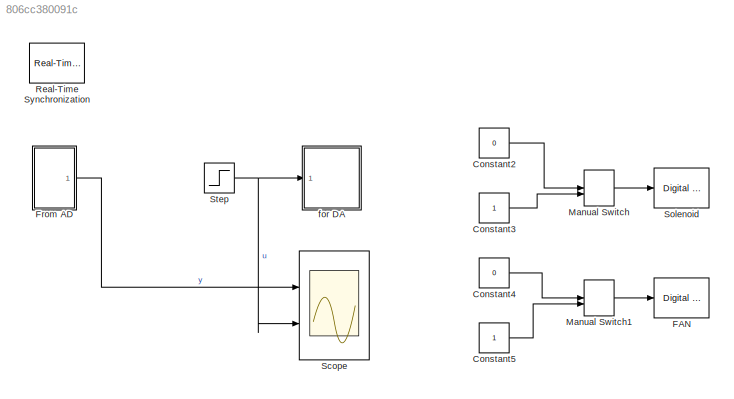
MODEL slx_806cc380091c
KIND model
CONFIG AbsTol = auto
CONFIG EnableMultiTasking = off
CONFIG FixedStep = 0.1
CONFIG MaxStep = auto
CONFIG MinStep = auto
CONFIG RelTol = 1e-3
CONFIG SampleTimeConstraint = Unconstrained
CONFIG Solver = FixedStepAuto
CONFIG SolverName = FixedStepAuto
CONFIG StartTime = 0.0
CONFIG StopTime = Endtime
BLOCK [Constant] Constant2
  Value = 0
BLOCK [Constant] Constant3
BLOCK [Constant] Constant4
  Value = 0
BLOCK [Constant] Constant5
BLOCK [Reference] FAN  REF=sldrtlib/Digital Output
  AttributesFormatString = Humusoft\nMF644 [auto]
  Ports = [1]
  SourceBlock = sldrtlib/Digital Output
  SourceProductBaseCode = WT
  SourceProductName = Simulink Desktop Real-Time
  SourceType = Simulink Desktop Real-Time Digital Output
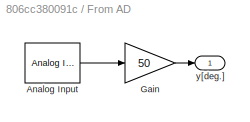
BLOCK [SubSystem] From AD
  Ports = [0, 1]
  RequestExecContextInheritance = off
  Variant = off
BLOCK [Reference] From AD/Analog Input  REF=sldrtlib/Analog Input
  AttributesFormatString = Humusoft\nMF644 [auto]
  Ports = [0, 1]
  SourceBlock = sldrtlib/Analog Input
  SourceProductBaseCode = WT
  SourceProductName = Simulink Desktop Real-Time
  SourceType = Simulink Desktop Real-Time Analog Input
BLOCK [Gain] From AD/Gain
  Gain = 50
  OutDataTypeStr = Inherit: Inherit via internal rule
  ParamDataTypeStr = Inherit: Inherit via internal rule
  SaturateOnIntegerOverflow = off
BLOCK [Outport] From AD/y[deg.]
  IconDisplay = Port number
BLOCK [ManualSwitch] Manual Switch
BLOCK [ManualSwitch] Manual Switch1
BLOCK [Reference] Real-Time Synchronization  REF=sldrtlib/Real-Time
Synchronization
  Ports = []
  SourceBlock = sldrtlib/Real-Time\nSynchronization
  SourceProductBaseCode = WT
  SourceProductName = Simulink Desktop Real-Time
  SourceType = Simulink Desktop Real-Time Synchronization
BLOCK [Scope] Scope
  NumInputPorts = 2
  Ports = [2]
  ScopeSpecificationString = Simulink.scopes.TimeScopeBlockCfg('CurrentConfiguration', extmgr.ConfigurationSet(extmgr.Configuration('Core','General UI',true,'FigureColor',[1 1 1]),extmgr.Configuration('Core','Source UI',true),extmgr.Configuration('Sources','WiredSimulink',true,'DataLoggingVariableName','ScopeData1'),extmgr.Configuration('Visuals','Time Domain',true,'SerializedDisplays',{struct('MinYLimReal','10.10132','MaxYLi...<+2647ch>
BLOCK [Reference] Solenoid  REF=sldrtlib/Digital Output
  AttributesFormatString = Humusoft\nMF644 [auto]
  Ports = [1]
  SourceBlock = sldrtlib/Digital Output
  SourceProductBaseCode = WT
  SourceProductName = Simulink Desktop Real-Time
  SourceType = Simulink Desktop Real-Time Digital Output
BLOCK [Step] Step
  After = 30
  SampleTime = 0
  Time = 10
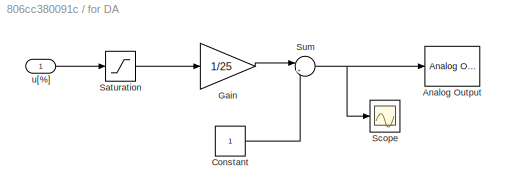
BLOCK [SubSystem] for DA
  Ports = [1]
  RequestExecContextInheritance = off
  Variant = off
BLOCK [Reference] for DA/Analog Output   REF=sldrtlib/Analog Output
  AttributesFormatString = Humusoft\nMF644 [auto]
  Ports = [1]
  SourceBlock = sldrtlib/Analog Output
  SourceProductBaseCode = WT
  SourceProductName = Simulink Desktop Real-Time
  SourceType = Simulink Desktop Real-Time Analog Output
BLOCK [Constant] for DA/Constant
BLOCK [Gain] for DA/Gain
  Gain = 1/25
  OutDataTypeStr = Inherit: Inherit via internal rule
  ParamDataTypeStr = Inherit: Inherit via internal rule
  SaturateOnIntegerOverflow = off
BLOCK [Saturate] for DA/Saturation
  InputPortMap = u0
  LowerLimit = 0
  Ports = [1, 1]
  UpperLimit = 100
BLOCK [Scope] for DA/Scope
  NumInputPorts = 1
  Ports = [1]
  ScopeSpecificationString = Simulink.scopes.TimeScopeBlockCfg('CurrentConfiguration', extmgr.ConfigurationSet(extmgr.Configuration('Core','General UI',true),extmgr.Configuration('Core','Source UI',true),extmgr.Configuration('Sources','WiredSimulink',true,'DataLoggingVariableName','ScopeData2'),extmgr.Configuration('Visuals','Time Domain',true,'SerializedDisplays',{struct('MinYLimReal','2.00000','MaxYLimReal','4.00000','YLabe...<+1415ch>
BLOCK [Sum] for DA/Sum
  IconShape = round
  InputSameDT = off
  Inputs = |++
  OutDataTypeStr = Inherit: Inherit via internal rule
  Ports = [2, 1]
  SaturateOnIntegerOverflow = off
BLOCK [Inport] for DA/u[%]
  IconDisplay = Port number
LINE Constant2:1 -> Manual Switch:1
LINE Constant3:1 -> Manual Switch:2
LINE Constant4:1 -> Manual Switch1:1
LINE Constant5:1 -> Manual Switch1:2
LINE From AD/Analog Input:1 -> From AD/Gain:1
LINE From AD/Gain:1 -> From AD/y[deg.]:1
LINE From AD:1 -> Scope:1
LINE Manual Switch1:1 -> FAN:1
LINE Manual Switch:1 -> Solenoid:1
NET Step:1 -> Scope:2, for DA:1
LINE for DA/Constant:1 -> for DA/Sum:2
LINE for DA/Gain:1 -> for DA/Sum:1
LINE for DA/Saturation:1 -> for DA/Gain:1
NET for DA/Sum:1 -> for DA/Analog Output :1, for DA/Scope:1
LINE for DA/u[%]:1 -> for DA/Saturation:1
note: NET lines group one-source signal fan-out (src -> all destinations, sorted); 1:1 wires keep LINE
